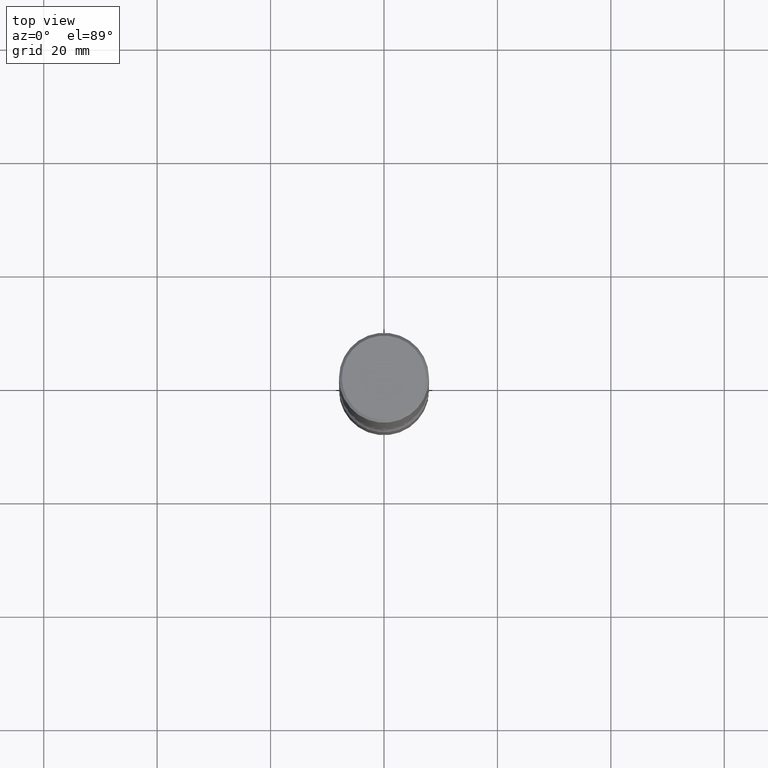
[diagram: clean part render]
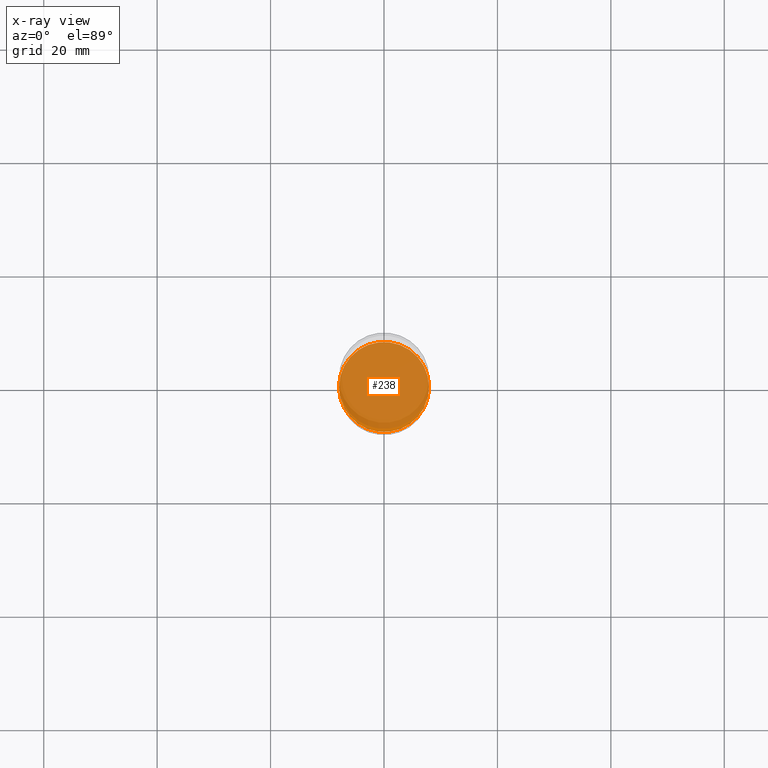
[diagram: x-ray — body ghosted, one internal face saturated and labeled with its STEP entity id]
A machine part, top view, then the same camera in x-ray: the body is ghosted and one INTERNAL B-rep face — a face not visible from any outside direction — is saturated and labeled: STEP entity #238.
In plain terms, the highlighted planar face has unit normal (0, -0, -1).
Its self-contained STEP definition (entity closure, byte-faithful):
#14 = CARTESIAN_POINT ( 'NONE',  ( 9.170508023194261117E-29, -1.309305502066179584E-14, -3.749999999999999556 ) ) ;
#15 = EDGE_CURVE ( 'NONE', #206, #325, #534, .T. ) ;
#51 = CARTESIAN_POINT ( 'NONE',  ( 9.170508023194261117E-29, -1.309305502066179584E-14, -3.749999999999999556 ) ) ;
#62 = EDGE_CURVE ( 'NONE', #325, #206, #437, .T. ) ;
#83 = AXIS2_PLACEMENT_3D ( 'NONE', #436, #341, #441 ) ;
#86 = ORIENTED_EDGE ( 'NONE', *, *, #15, .T. ) ;
#101 = FACE_OUTER_BOUND ( 'NONE', #174, .T. ) ;
#127 = DIRECTION ( 'NONE',  ( -2.445468806185136597E-29, 3.491481338843145583E-15, 1.000000000000000000 ) ) ;
#136 = DIRECTION ( 'NONE',  ( 1.000000000000000000, -6.982962677686265133E-15, 0.000000000000000000 ) ) ;
#147 = DIRECTION ( 'NONE',  ( -1.000000000000000000, 6.982962677686265922E-15, -4.876176775795935793E-29 ) ) ;
#174 = EDGE_LOOP ( 'NONE', ( #467, #86 ) ) ;
#206 = VERTEX_POINT ( 'NONE', #273 ) ;
#238 = ADVANCED_FACE ( 'NONE', ( #101 ), #267, .F. ) ;
#251 = AXIS2_PLACEMENT_3D ( 'NONE', #14, #451, #147 ) ;
#267 = PLANE ( 'NONE',  #251 ) ;
#273 = CARTESIAN_POINT ( 'NONE',  ( -0.3125000000000001665, -1.300241258810579915E-14, -3.749999999999999556 ) ) ;
#325 = VERTEX_POINT ( 'NONE', #431 ) ;
#341 = DIRECTION ( 'NONE',  ( -2.445468806185136597E-29, 3.491481338843145583E-15, 1.000000000000000000 ) ) ;
#431 = CARTESIAN_POINT ( 'NONE',  ( 0.3125000000000001665, -1.527523085743875418E-14, -3.749999999999999556 ) ) ;
#436 = CARTESIAN_POINT ( 'NONE',  ( 9.170508023194261117E-29, -1.309305502066179584E-14, -3.749999999999999556 ) ) ;
#437 = CIRCLE ( 'NONE', #506, 0.3125000000000001665 ) ;
#441 = DIRECTION ( 'NONE',  ( 1.000000000000000000, -6.982962677686265133E-15, 0.000000000000000000 ) ) ;
#451 = DIRECTION ( 'NONE',  ( 2.438088387897960049E-29, -3.491481338843145188E-15, -1.000000000000000000 ) ) ;
#467 = ORIENTED_EDGE ( 'NONE', *, *, #62, .T. ) ;
#506 = AXIS2_PLACEMENT_3D ( 'NONE', #51, #127, #136 ) ;
#534 = CIRCLE ( 'NONE', #83, 0.3125000000000001665 ) ;